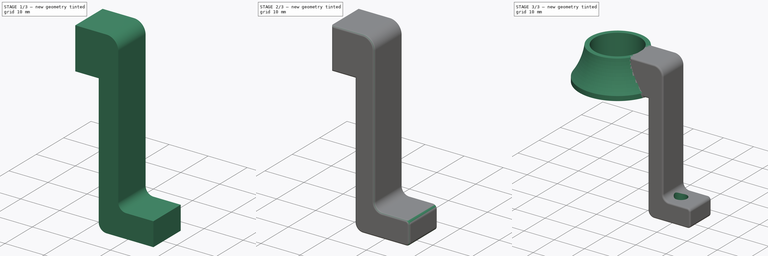
[diagram: build sequence overview — one tinted view per stage of 3, left to right]
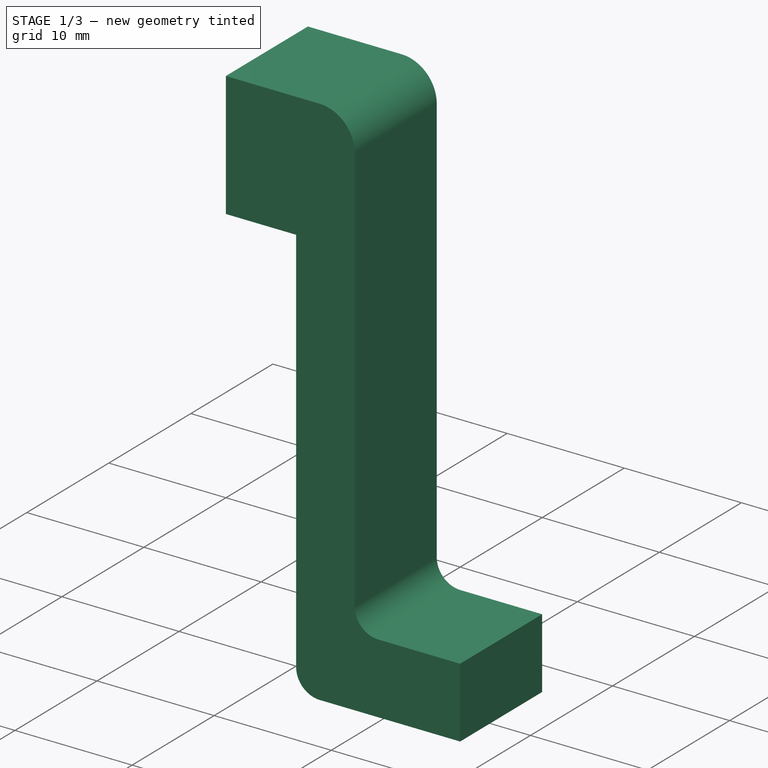
[diagram: stage 1 of 3 — iso view after this stage's code; geometry added in this stage tinted green]
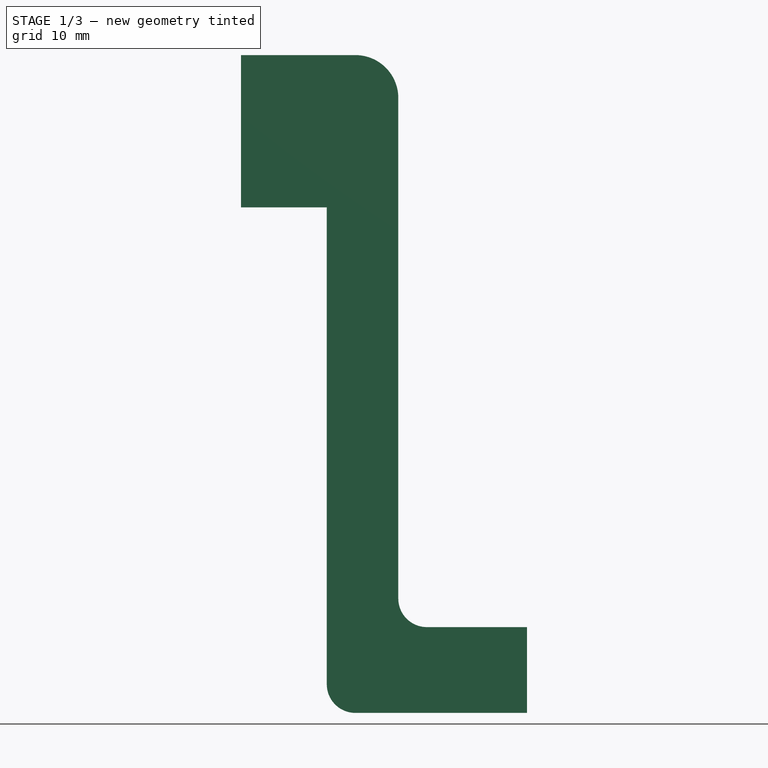
[diagram: stage 1 of 3 — front view after this stage's code; geometry added in this stage tinted green]
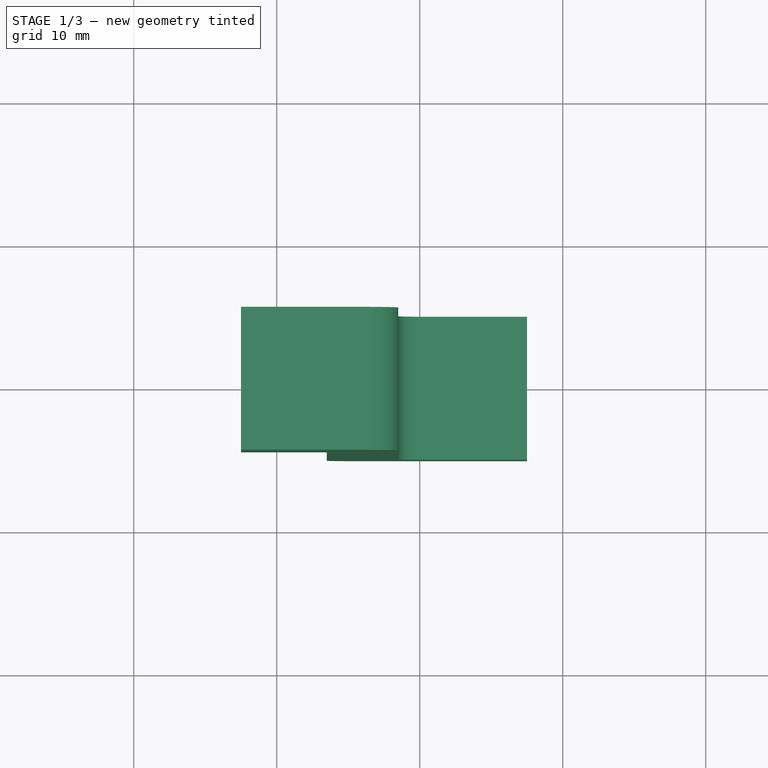
[diagram: stage 1 of 3 — top view after this stage's code; geometry added in this stage tinted green]
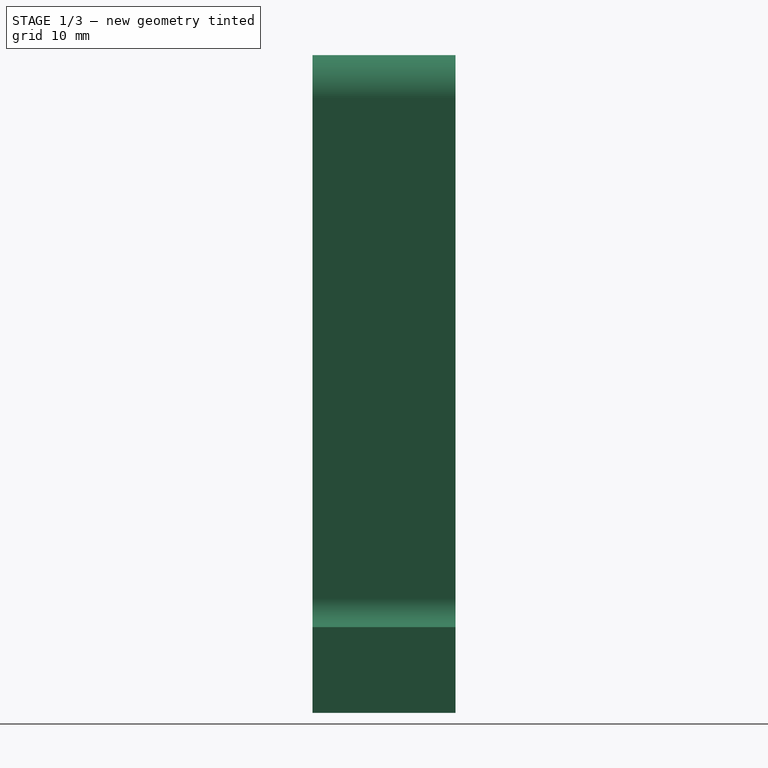
[diagram: stage 1 of 3 — right view after this stage's code; geometry added in this stage tinted green]
FCSTD DOCUMENT  (FreeCAD 0.16R)
Label: 15mmhanger
License: All rights reserved
LicenseURL: http://en.wikipedia.org/wiki/All_rights_reserved
objects: PartDesign::Fillet×5, Sketcher::SketchObject×3, PartDesign::Revolution×1, PartDesign::Pad×1, PartDesign::Pocket×1
note: 14 computed .brp shape members not serialized (recipe doc carries the construction recipe); baked Part::Feature solids carry a one-line shape summary decoded from their .brp

FEATURE [Sketcher::SketchObject] Sketch003
  Placement = pos=(0,0,0) rot=(-1,0,0;4.71239rad)
  sketch-geometry (8):
    g0: LineSegment StartX=7.5 StartY=11 StartZ=0 EndX=18.5 EndY=11 EndZ=0
    g1: LineSegment StartX=18.5 StartY=11 StartZ=0 EndX=18.5 EndY=-29 EndZ=0
    g2: LineSegment StartX=18.5 StartY=-29 StartZ=0 EndX=27.5 EndY=-29 EndZ=0
    g3: LineSegment StartX=27.5 StartY=-29 StartZ=0 EndX=27.5 EndY=-35 EndZ=0
    g4: LineSegment StartX=27.5 StartY=-35 StartZ=0 EndX=13.5 EndY=-35 EndZ=0
    g5: LineSegment StartX=13.5 StartY=-35 StartZ=0 EndX=13.5 EndY=0.352804 EndZ=0
    g6: LineSegment StartX=13.5 StartY=0.352804 StartZ=0 EndX=7.5 EndY=0.352804 EndZ=0
    g7: LineSegment StartX=7.5 StartY=0.352804 StartZ=0 EndX=7.5 EndY=11 EndZ=0
  constraints (24):
    c: Horizontal(g0)
    c: Coincident(g0,g1)
    c: Vertical(g1)
    c: Coincident(g1,g2)
    c: Horizontal(g2)
    c: Coincident(g2,g3)
    c: Coincident(g3,g4)
    c: Horizontal(g4)
    c: Coincident(g4,g5)
    c: Vertical(g5)
    c: Coincident(g5,g6)
    c: Coincident(g6,g7)
    c: Coincident(g7,g0)
    c: Horizontal(g6)
    c: DistanceY(g5) = 0.352804
    c: DistanceX(g5) = 13.5
    c: DistanceY(g0) = 11
    c: Vertical(g7)
    c: DistanceX(g6) = 7.5
    c: DistanceY(g4) = -35
    c: Vertical(g3)
    c: Distance(g3) = 6
    c: Distance(g2) = 9
    c: Distance(g1,g5) = 5
FEATURE [PartDesign::Pad] Pad
  Length = 10
  Length2 = 100
  Midplane = true
  Placement = pos=(0,0,0) rot=(-1,0,0;4.71239rad)
  Sketch = -> Sketch003
  Type = 0
FEATURE [PartDesign::Fillet] Fillet
  Base = -> Pad [Edge2]
  Placement = pos=(0,0,0) rot=(-1,0,0;4.71239rad)
  Radius = 3
FEATURE [PartDesign::Fillet] Fillet001
  Base = -> Fillet [Edge26,Edge23]
  Placement = pos=(0,0,0) rot=(-1,0,0;4.71239rad)
  Radius = 2
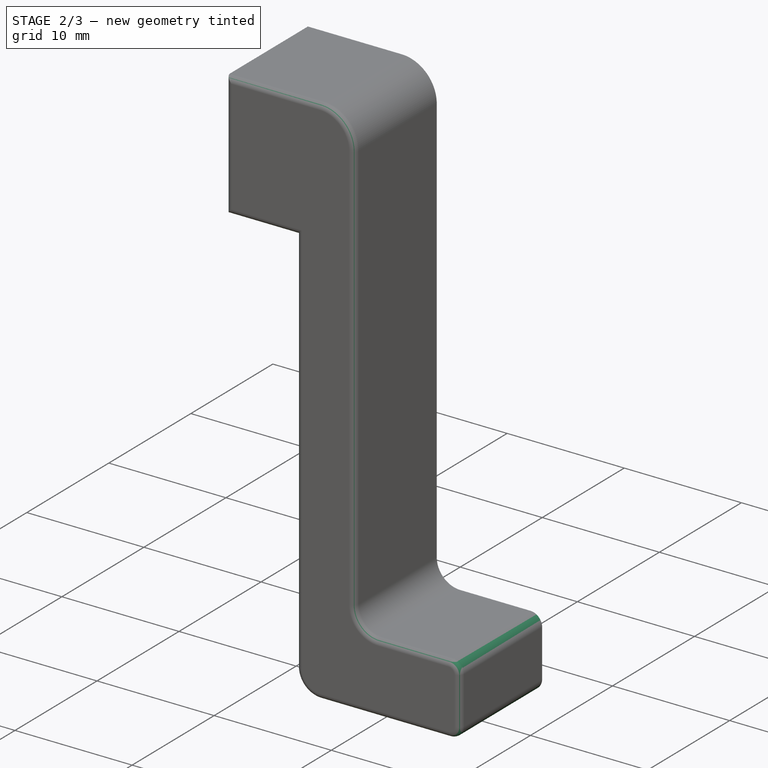
[diagram: stage 2 of 3 — iso view after this stage's code; geometry added in this stage tinted green]
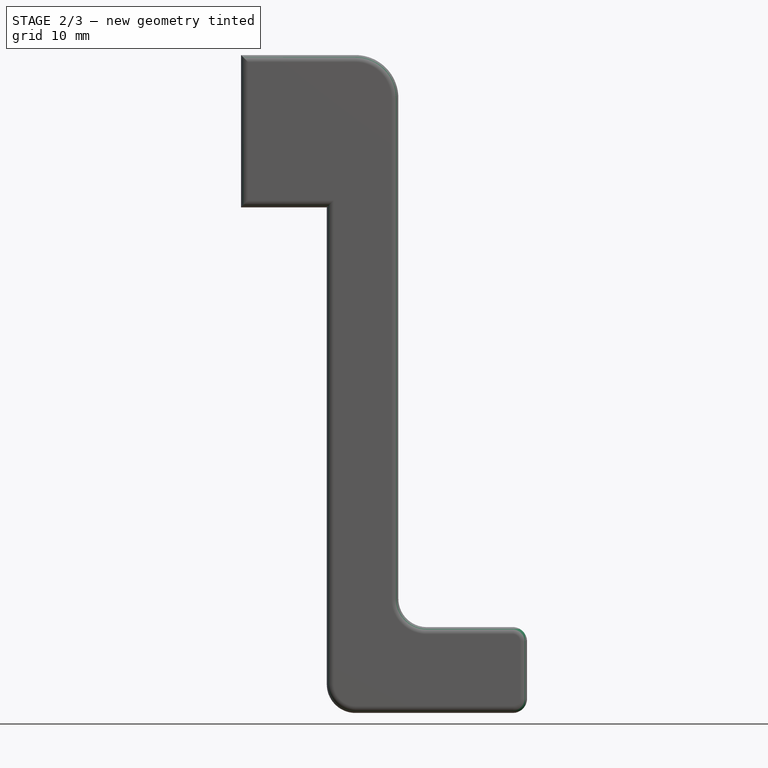
[diagram: stage 2 of 3 — front view after this stage's code; geometry added in this stage tinted green]
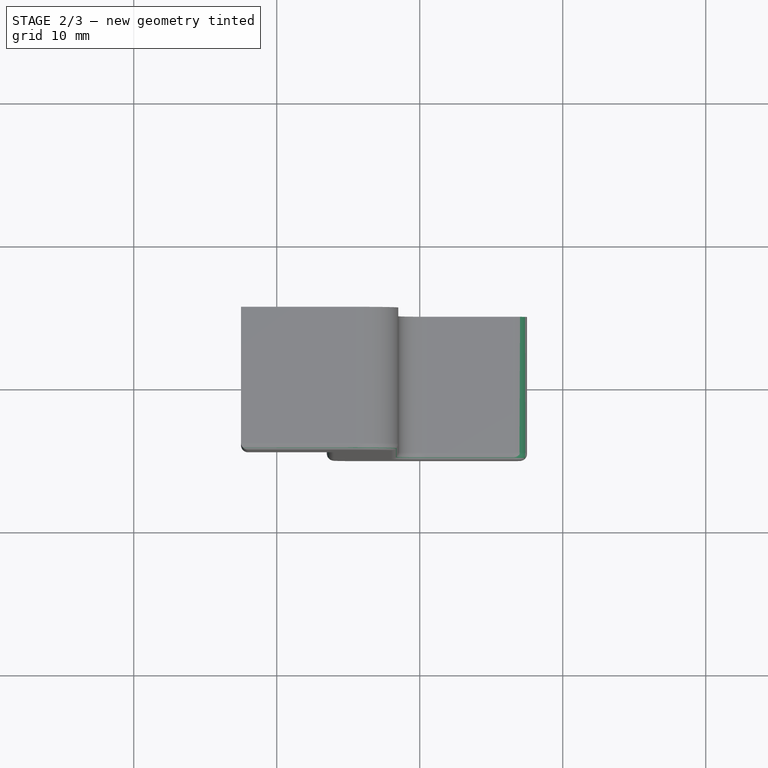
[diagram: stage 2 of 3 — top view after this stage's code; geometry added in this stage tinted green]
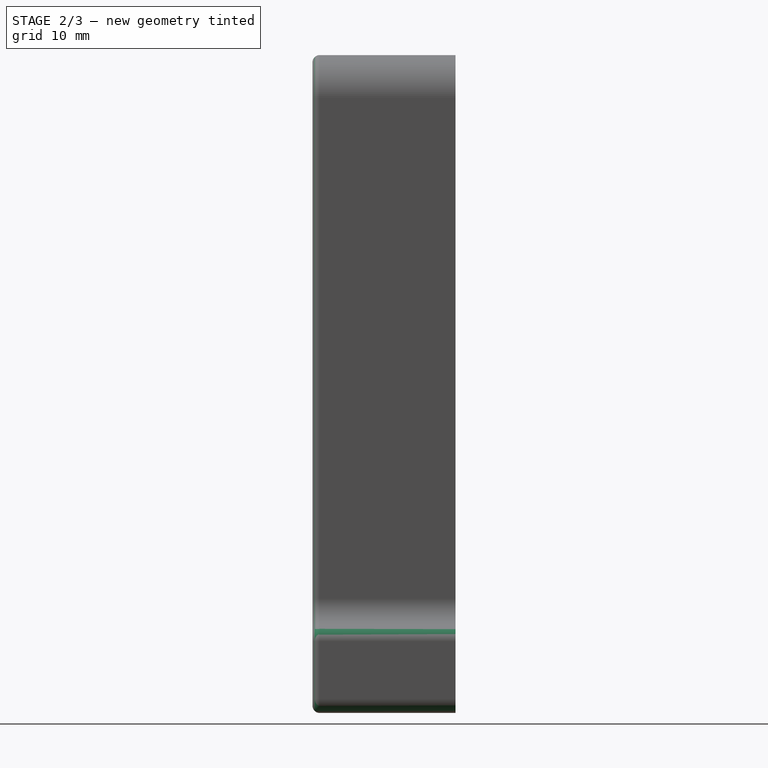
[diagram: stage 2 of 3 — right view after this stage's code; geometry added in this stage tinted green]
FEATURE [PartDesign::Fillet] Fillet002
  Base = -> Fillet001 [Edge19,Edge23]
  Placement = pos=(0,0,0) rot=(-1,0,0;4.71239rad)
  Radius = 1
FEATURE [PartDesign::Fillet] Fillet003
  Base = -> Fillet002 [Edge16,Edge18,Edge20,Edge22,Edge24,Edge26,Edge28,Edge30,Edge32,Edge34,Edge36,Edge38,Edge39]
  Placement = pos=(0,0,0) rot=(-1,0,0;4.71239rad)
  Radius = 0.5
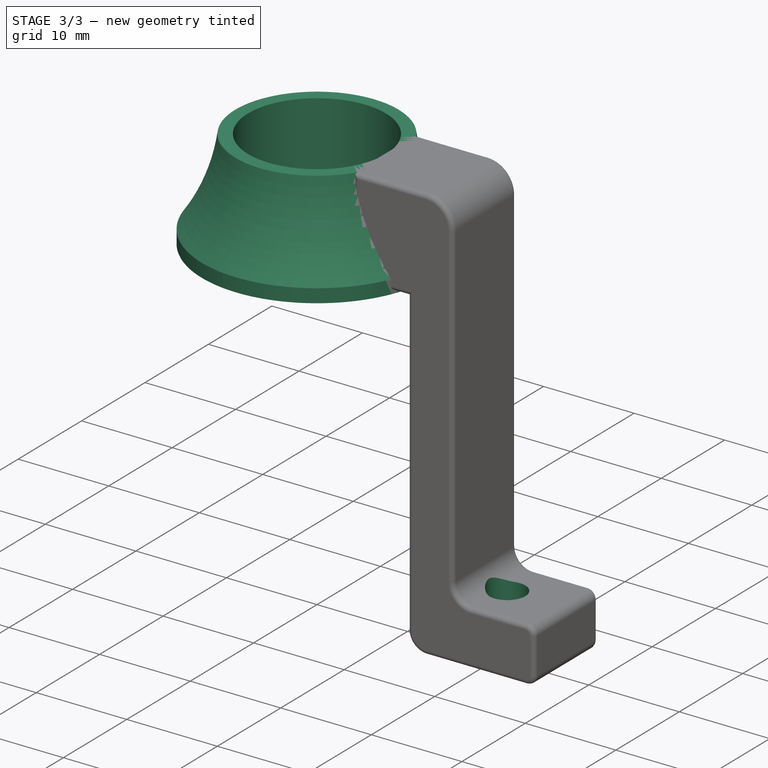
[diagram: stage 3 of 3 — iso view after this stage's code; geometry added in this stage tinted green]
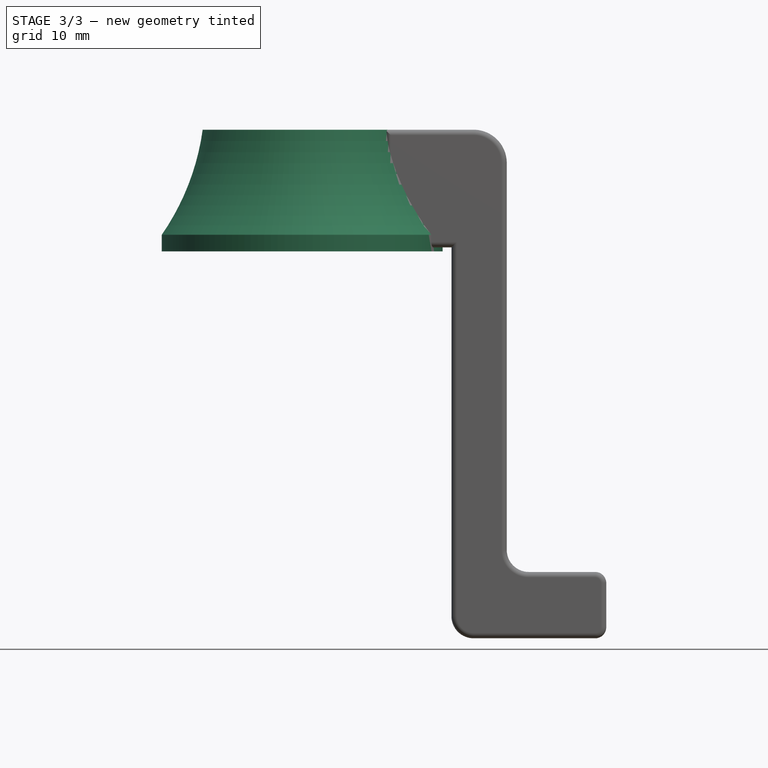
[diagram: stage 3 of 3 — front view after this stage's code; geometry added in this stage tinted green]
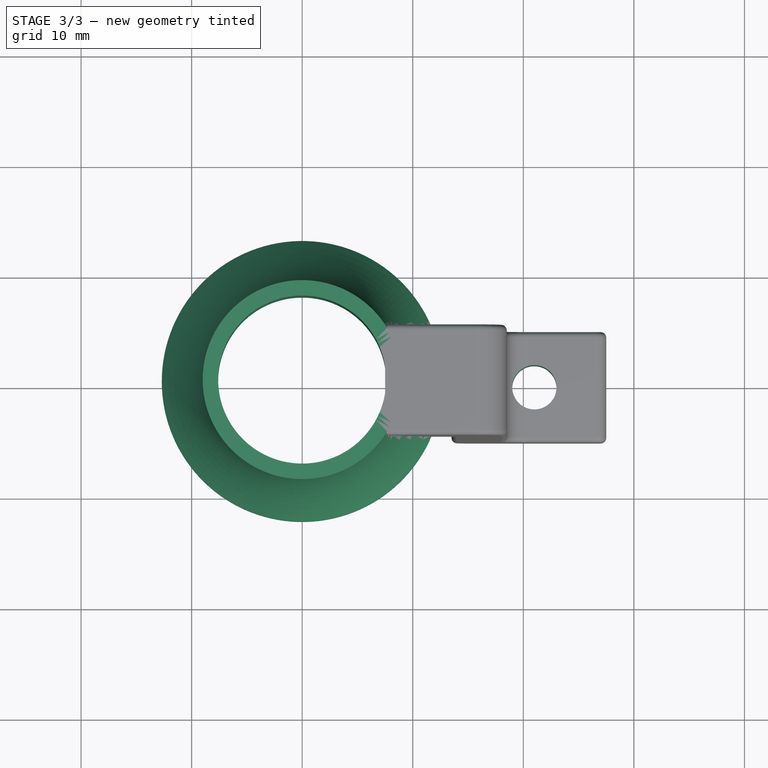
[diagram: stage 3 of 3 — top view after this stage's code; geometry added in this stage tinted green]
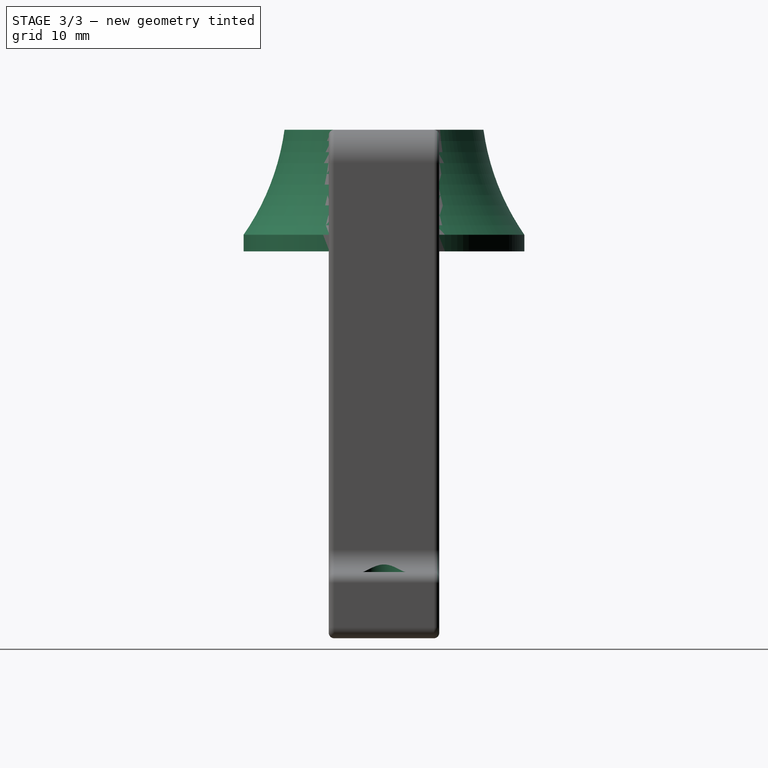
[diagram: stage 3 of 3 — right view after this stage's code; geometry added in this stage tinted green]
FEATURE [Sketcher::SketchObject] Sketch002
  Placement = pos=(0,0,0) rot=(-1,0,0;4.71239rad)
  sketch-geometry (5):
    g0: LineSegment StartX=7.6 StartY=11 StartZ=0 EndX=7.6 EndY=0 EndZ=0
    g1: LineSegment StartX=7.6 StartY=0 StartZ=0 EndX=12.7 EndY=0 EndZ=0
    g2: LineSegment StartX=12.7 StartY=0 StartZ=0 EndX=12.7 EndY=1.5 EndZ=0
    g3: LineSegment StartX=7.6 StartY=11 StartZ=0 EndX=9 EndY=11 EndZ=0
    g4: ArcOfCircle CenterX=30.7338 CenterY=13.9942 CenterZ=0 NormalX=0 NormalY=0 NormalZ=1 Radius=21.9391 StartAngle=3.2785 EndAngle=3.74748
  constraints (15):
    c: PointOnObject(g0,g-1)
    c: Vertical(g0)
    c: Coincident(g0,g1)
    c: PointOnObject(g1,g-1)
    c: Coincident(g1,g2)
    c: Vertical(g2)
    c: Coincident(g3,g0)
    c: Horizontal(g3)
    c: Distance(g2) = 1.5
    c: Coincident(g4,g2)
    c: Coincident(g4,g3)
    c: DistanceX(g3) = 9
    c: DistanceX(g0) = 7.6
    c: DistanceY(g0) = 11
    c: DistanceX(g1) = 12.7
FEATURE [PartDesign::Revolution] Revolution
  Angle = 360
  Axis = (0,0,1)
  Base = (0,0,0)
  Placement = pos=(0,0,0) rot=(-1,0,0;4.71239rad)
  ReferenceAxis = -> Sketch002 [V_Axis]
  Reversed = true
  Sketch = -> Sketch002
FEATURE [PartDesign::Fillet] Fillet004
  Base = -> Fillet003 [Edge3,Edge6,Edge11,Edge12,Edge13,Edge14,Edge15,Edge16,Edge17,Edge18,Edge19,Edge20,Edge21]
  Placement = pos=(0,0,0) rot=(-1,0,0;4.71239rad)
  Radius = 0.5
FEATURE [Sketcher::SketchObject] Sketch
  ExternalGeometry = -> [Fillet004]
  Placement = pos=(0,0,-35) rot=(1,0,0;3.14159rad)
  Support = -> Fillet004 [Face36]
  sketch-geometry (1):
    g0: Circle CenterX=21 CenterY=0 CenterZ=0 NormalX=0 NormalY=0 NormalZ=1 Radius=2
  constraints (2):
    c: Radius(g0) = 2
    c: Symmetric(g-4,g-3,g0)
FEATURE [PartDesign::Pocket] Pocket
  Length = 5
  Placement = pos=(0,0,0) rot=(-1,0,0;4.71239rad)
  Sketch = -> Sketch
  Type = 1
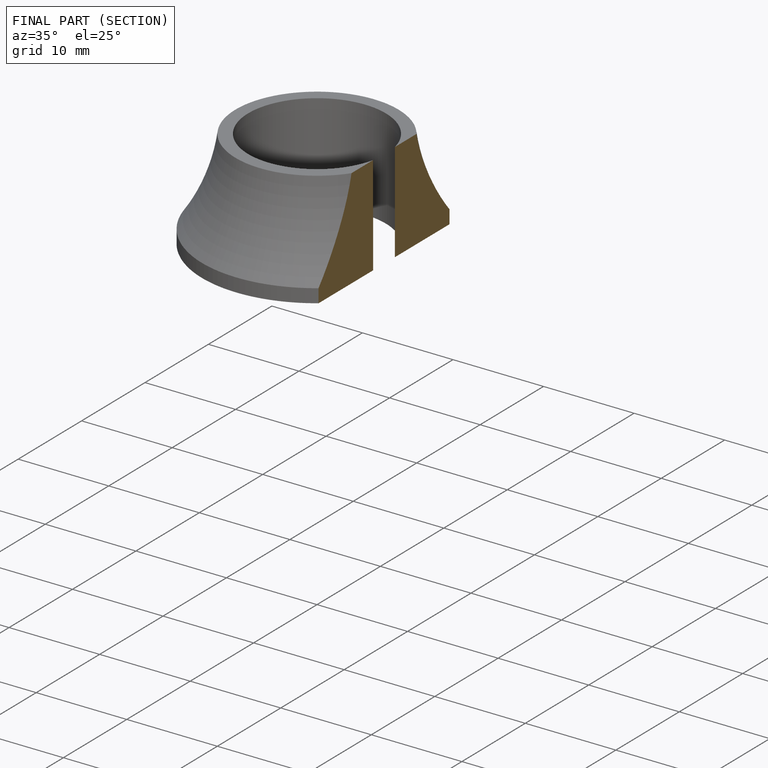
[diagram: finished part — half-section view (interior)]
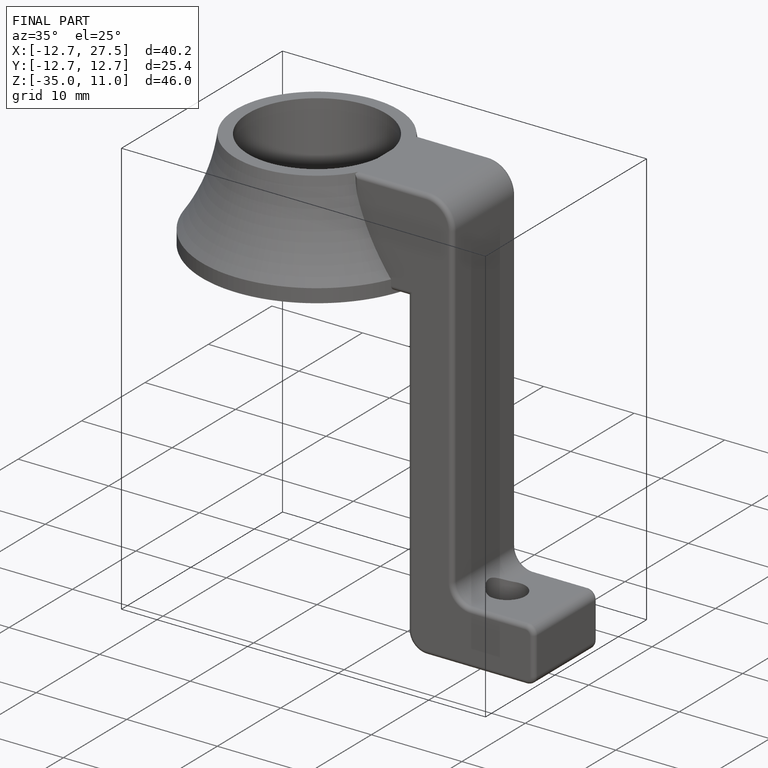
[diagram: finished part — iso view with bounding-box wireframe]
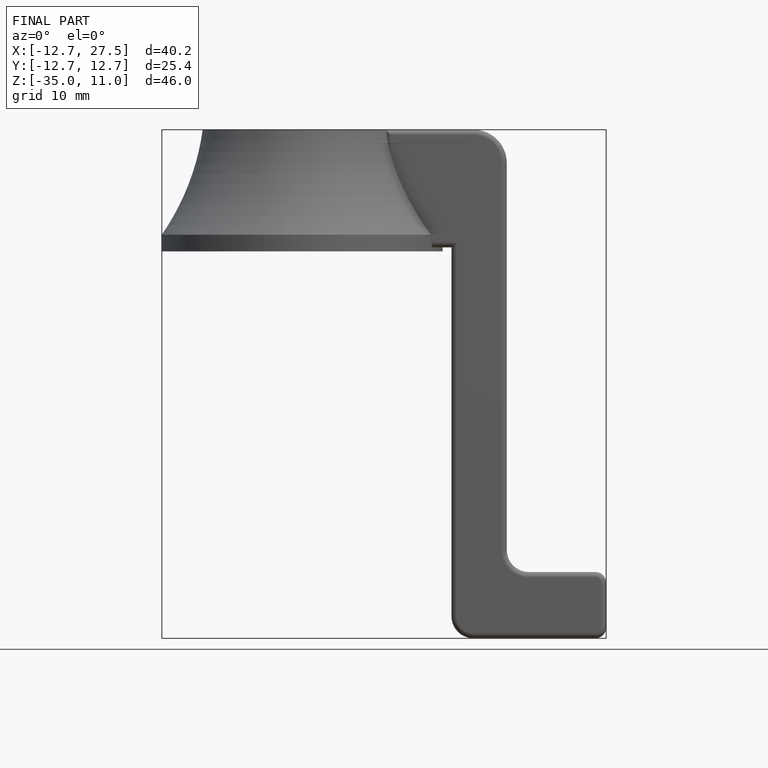
[diagram: finished part — front view with bounding-box wireframe]
